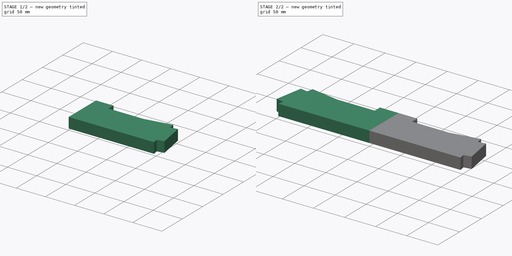
[diagram: build sequence overview — one tinted view per stage of 2, left to right]
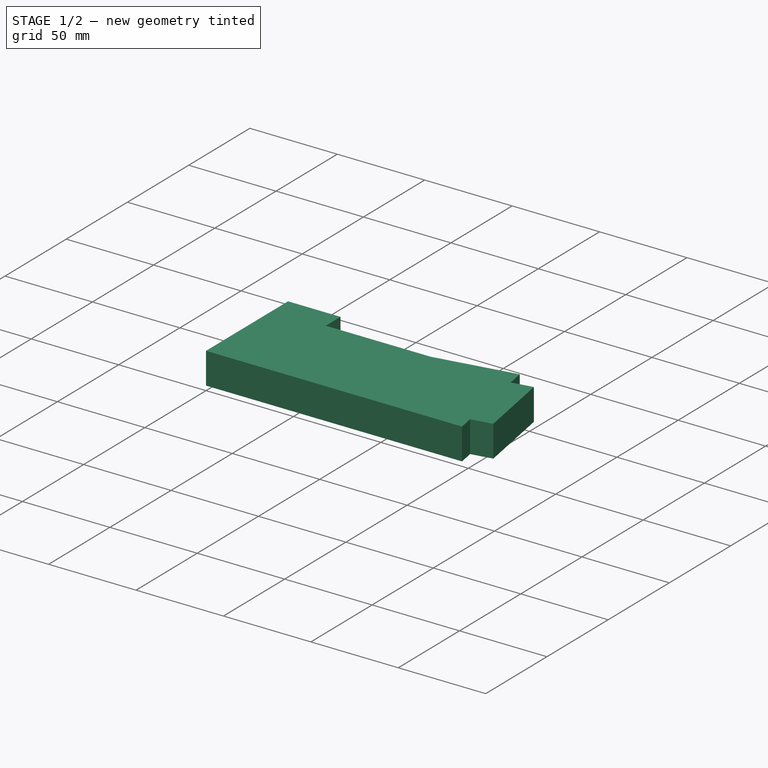
[diagram: stage 1 of 2 — iso view after this stage's code; geometry added in this stage tinted green]
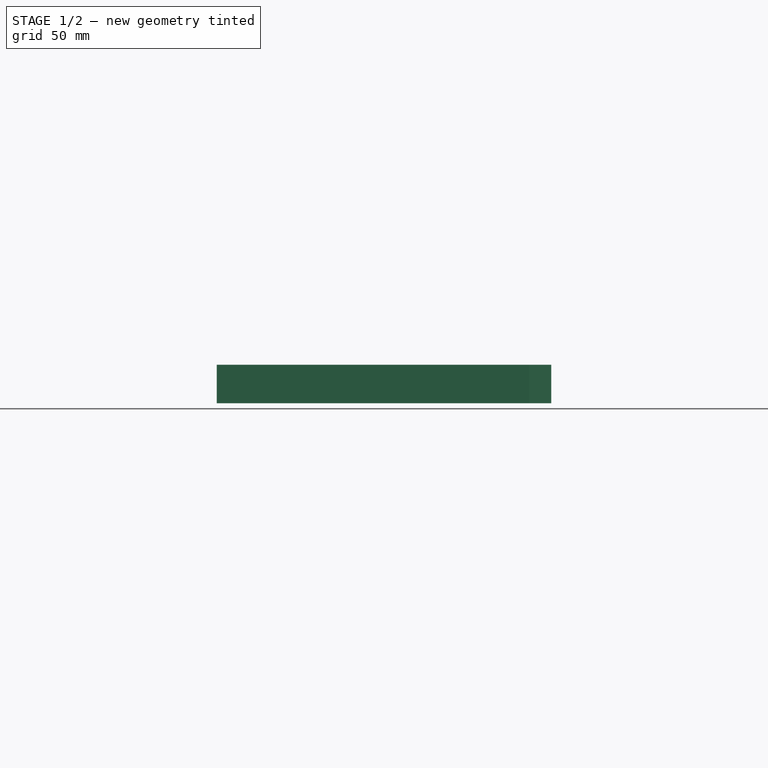
[diagram: stage 1 of 2 — front view after this stage's code; geometry added in this stage tinted green]
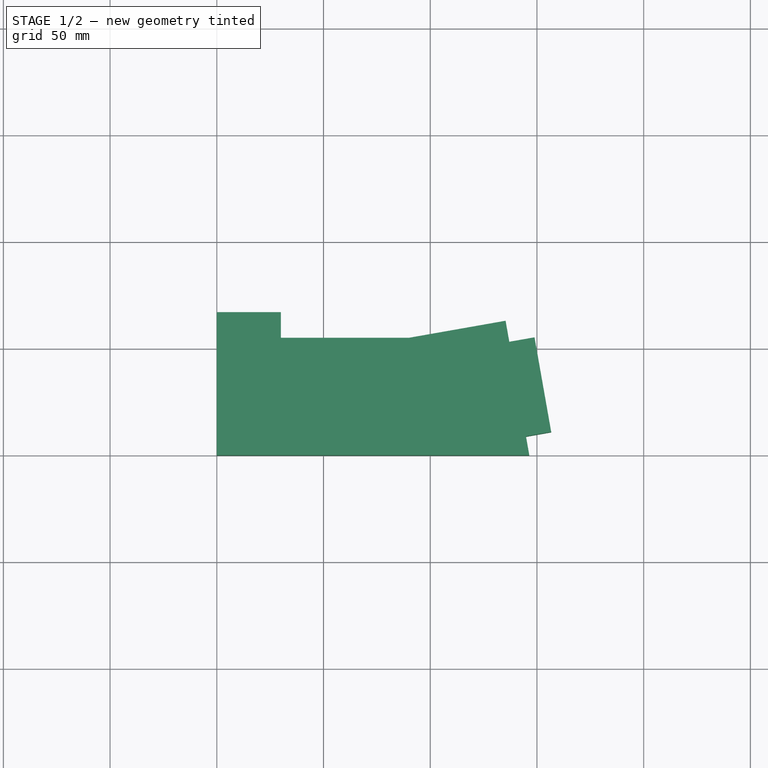
[diagram: stage 1 of 2 — top view after this stage's code; geometry added in this stage tinted green]
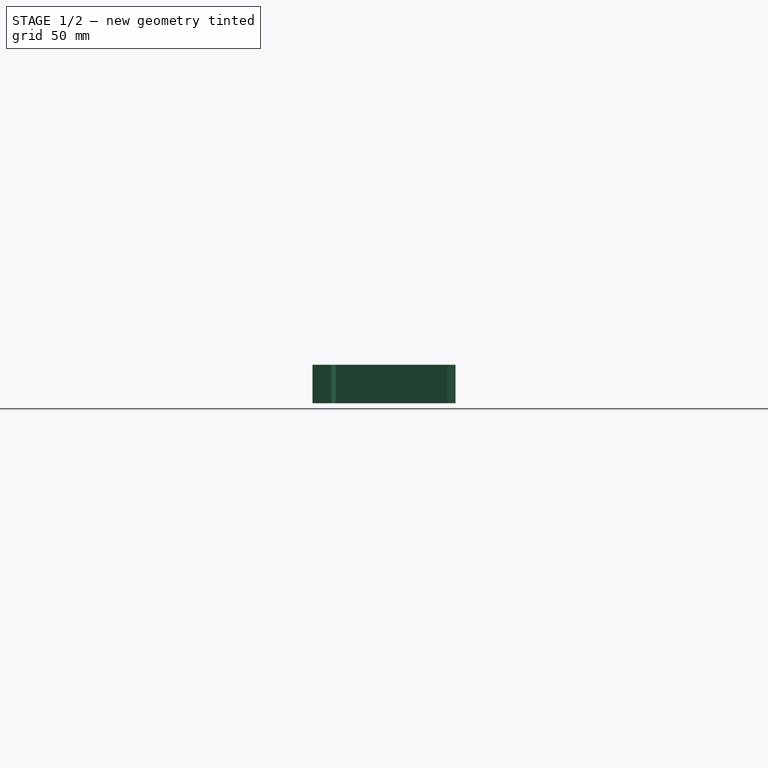
[diagram: stage 1 of 2 — right view after this stage's code; geometry added in this stage tinted green]
FCSTD DOCUMENT  (FreeCAD 0.15R4671 (Git))
Label: LinkPart
License: All rights reserved
LicenseURL: http://en.wikipedia.org/wiki/All_rights_reserved
objects: Sketcher::SketchObject×1, PartDesign::Pad×1, PartDesign::Mirrored×1
note: 4 computed .brp shape members not serialized (recipe doc carries the construction recipe); baked Part::Feature solids carry a one-line shape summary decoded from their .brp

FEATURE [Sketcher::SketchObject] Sketch
  sketch-geometry (11):
    g0: LineSegment StartX=0 StartY=67 StartZ=0 EndX=30 EndY=67 EndZ=0
    g1: LineSegment StartX=30 StartY=67 StartZ=0 EndX=30 EndY=55 EndZ=0
    g2: LineSegment StartX=30 StartY=55 StartZ=0 EndX=90 EndY=55 EndZ=0
    g3: LineSegment StartX=90 StartY=55 StartZ=0 EndX=135.301 EndY=62.9878 EndZ=0
    g4: LineSegment StartX=135.301 StartY=62.9878 StartZ=0 EndX=137.038 EndY=53.1397 EndZ=0
    g5: LineSegment StartX=137.038 StartY=53.1397 StartZ=0 EndX=148.855 EndY=55.2235 EndZ=0
    g6: LineSegment StartX=148.855 StartY=55.2235 StartZ=0 EndX=156.669 EndY=10.9072 EndZ=0
    g7: LineSegment StartX=156.669 StartY=10.9072 StartZ=0 EndX=144.852 EndY=8.82339 EndZ=0
    g8: LineSegment StartX=144.852 StartY=8.82339 StartZ=0 EndX=146.408 EndY=0 EndZ=0
    g9: LineSegment StartX=146.408 StartY=0 StartZ=0 EndX=0 EndY=0 EndZ=0
    g10: LineSegment StartX=0 StartY=0 StartZ=0 EndX=0 EndY=67 EndZ=0
  constraints (32):
    c: Coincident(g0,g1)
    c: Coincident(g1,g2)
    c: Coincident(g2,g3)
    c: Coincident(g3,g4)
    c: Coincident(g4,g5)
    c: Coincident(g5,g6)
    c: Coincident(g6,g7)
    c: Coincident(g7,g8)
    c: Coincident(g9,g10)
    c: Vertical(g10)
    c: Coincident(g0,g10)
    c: Horizontal(g0)
    c: Horizontal(g2)
    c: Horizontal(g9)
    c: Angle(g3) = 0.174533
    c: Vertical(g1)
    c: Perpendicular(g6,g5)
    c: Perpendicular(g3,g4)
    c: Coincident(g8,g9)
    c: Distance(g0) = 30
    c: Distance(g2) = 60  'Length'
    c: Distance(g1) = 12
    c: Distance(g3) = 46
    c: Distance(g5) = 12
    c: Distance(g4) = 10
    c: Perpendicular(g7,g6)
    c: Distance(g7) = 12
    c: Distance(g6) = 45
    c: DistanceY(g1,g9) = -55
    c: Coincident(g-1,g9)
    c: Perpendicular(g4,g5)
    c: Perpendicular(g8,g7)
FEATURE [PartDesign::Pad] Pad
  Length = 18
  Length2 = 100
  Sketch = -> Sketch
  Type = 0
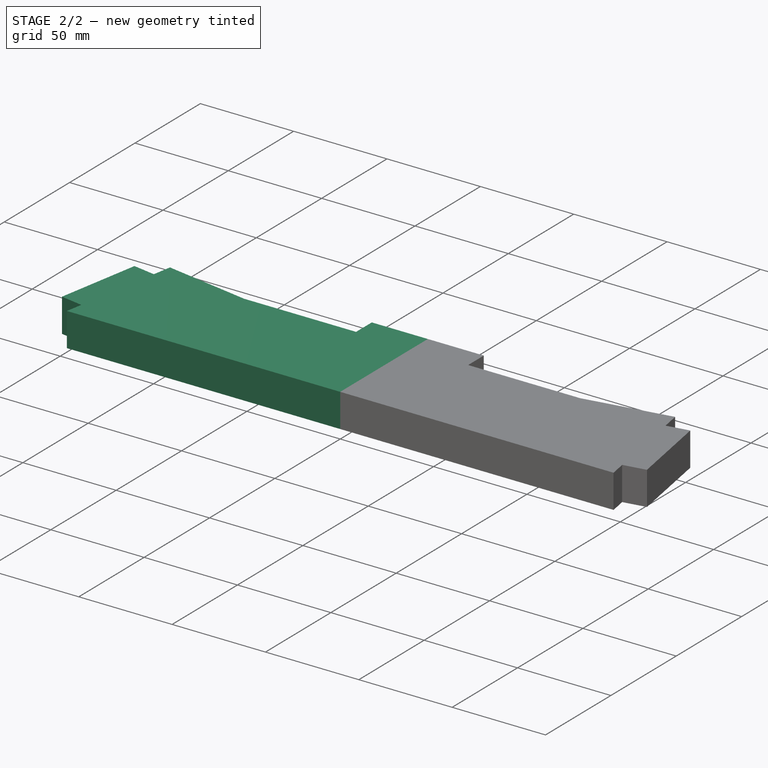
[diagram: stage 2 of 2 — iso view after this stage's code; geometry added in this stage tinted green]
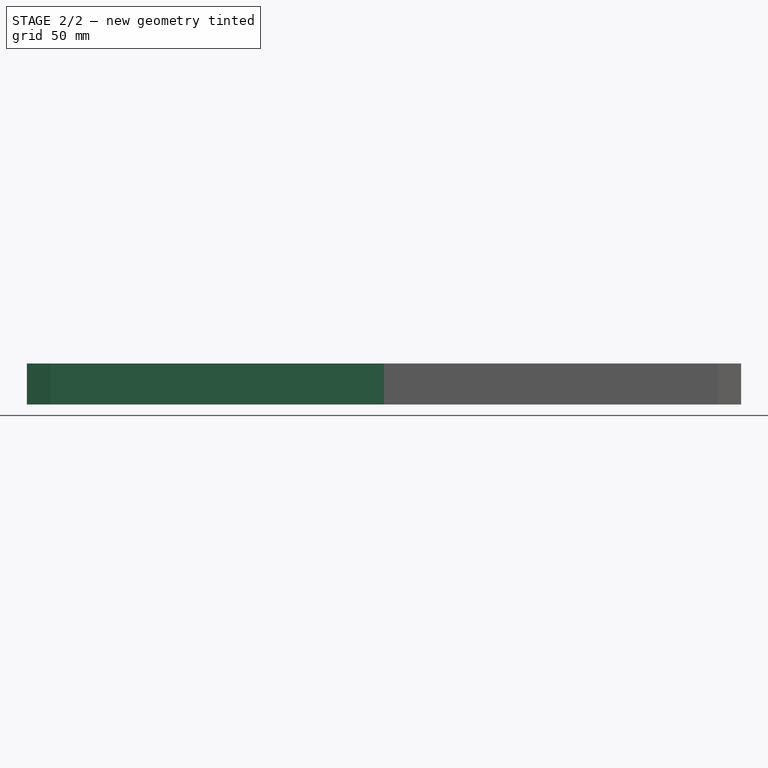
[diagram: stage 2 of 2 — front view after this stage's code; geometry added in this stage tinted green]
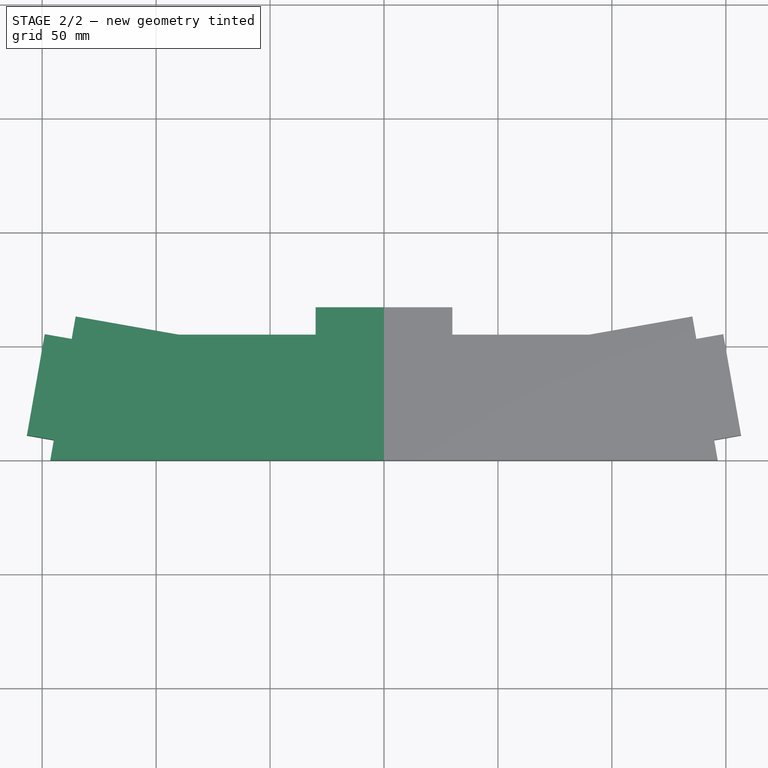
[diagram: stage 2 of 2 — top view after this stage's code; geometry added in this stage tinted green]
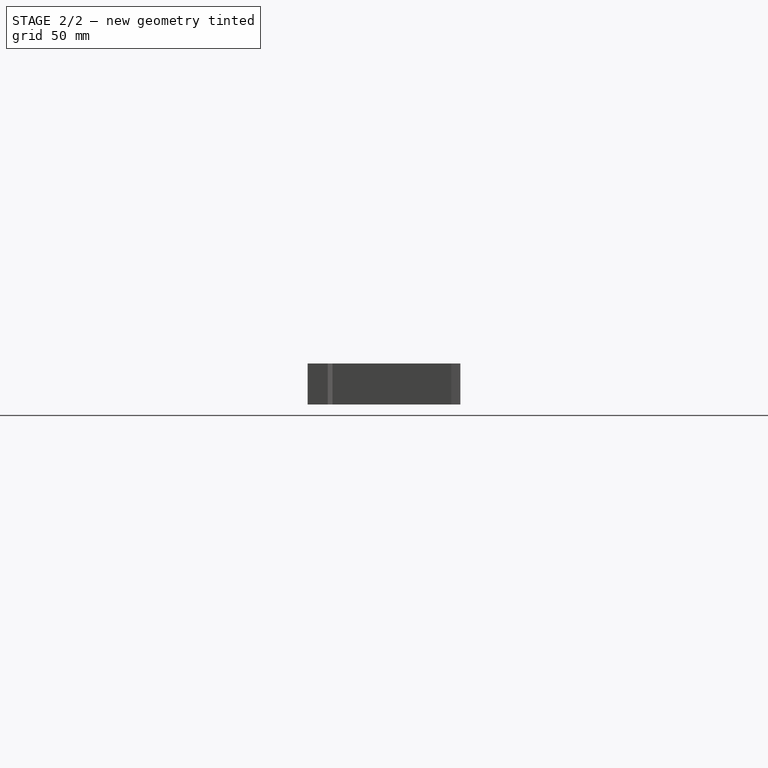
[diagram: stage 2 of 2 — right view after this stage's code; geometry added in this stage tinted green]
FEATURE [PartDesign::Mirrored] Mirrored  label="Last"
  MirrorPlane = -> Sketch [V_Axis]
  Originals = -> [Pad]
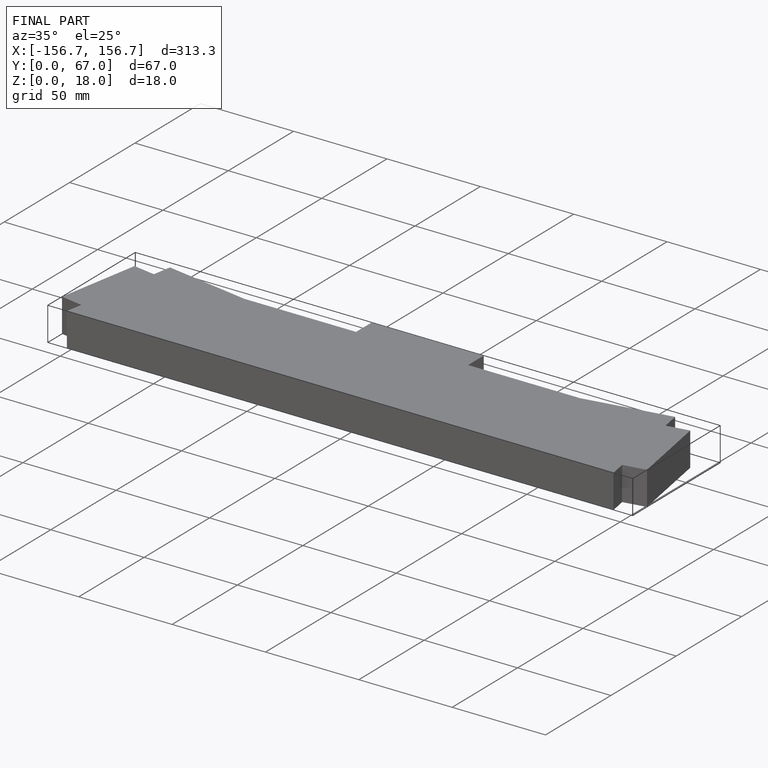
[diagram: finished part — iso view with bounding-box wireframe]
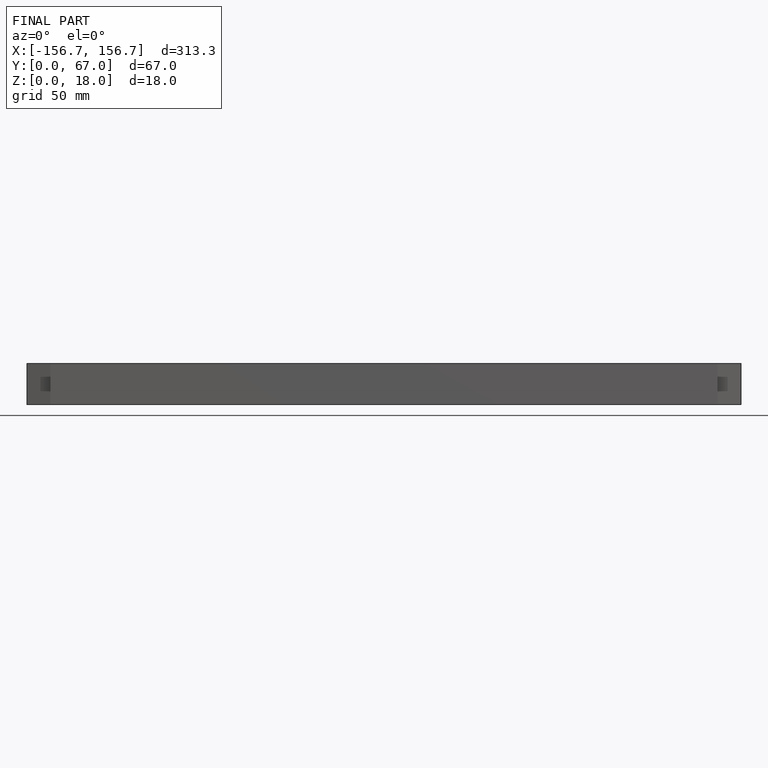
[diagram: finished part — front view with bounding-box wireframe]
